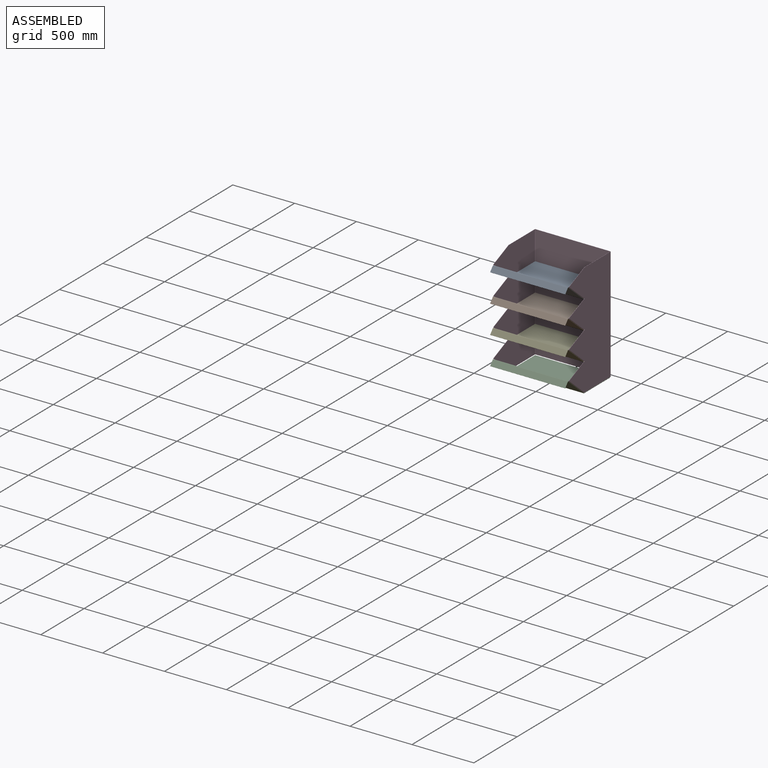
[diagram: assembled view]
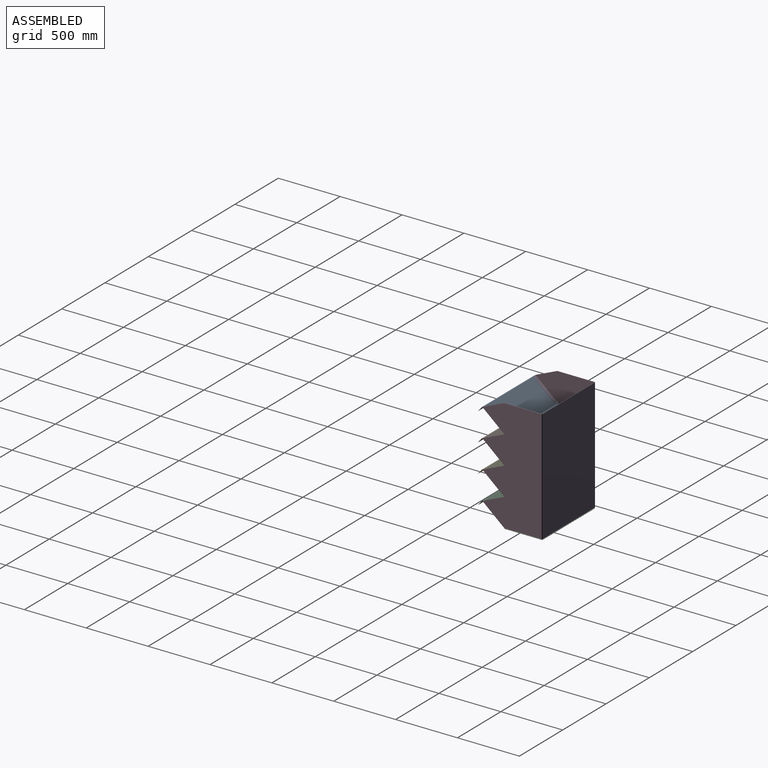
[diagram: assembled view, second angle]
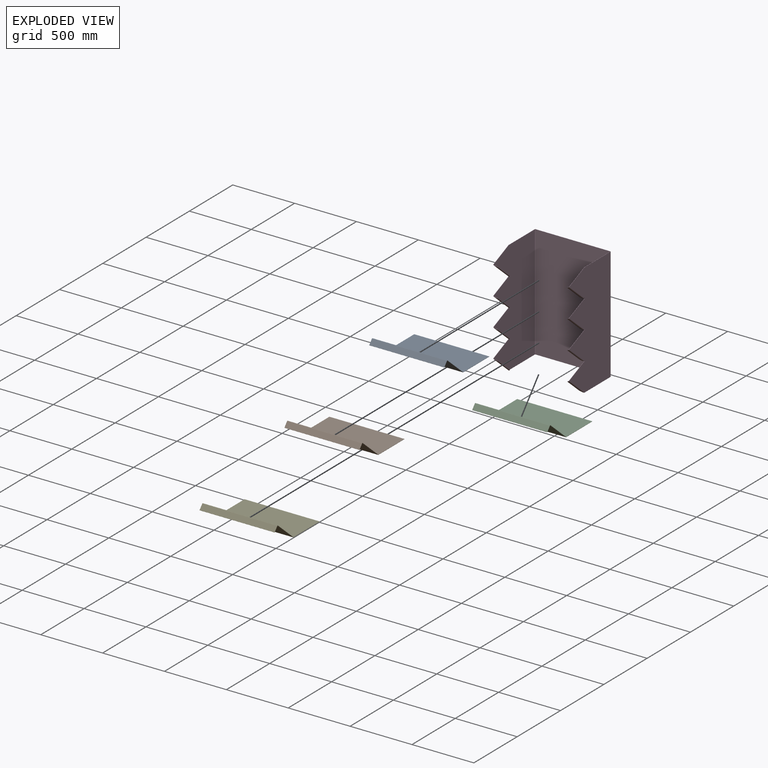
[diagram: exploded view]
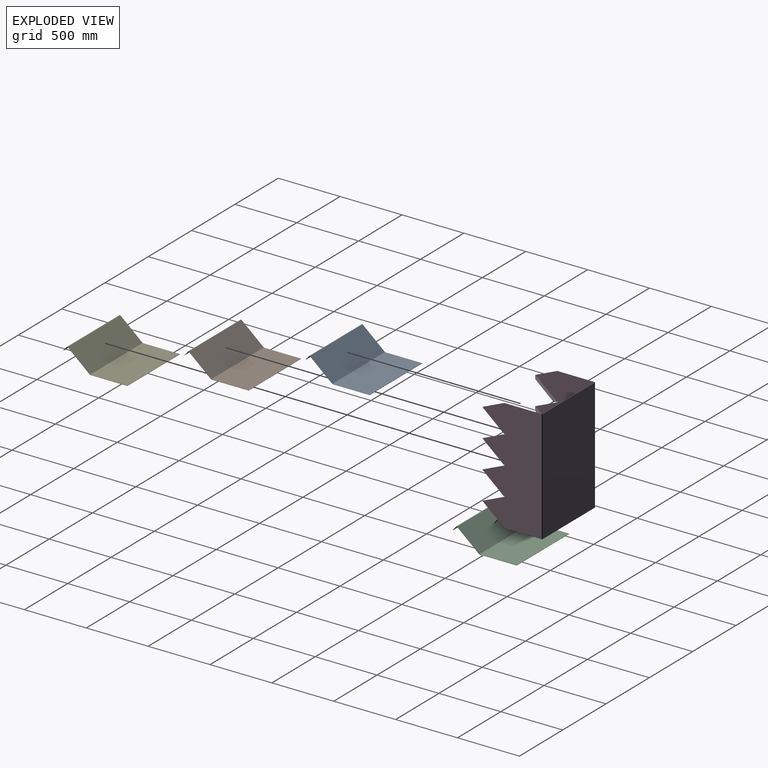
[diagram: exploded view, second angle]
ASSEMBLY  parts=5 mates=12
PART A: 22 faces, bbox 606.4x519.6x157.5 mm
  f0: plane 299.86x1.9mm, normal (-1,0,0), area 568.9mm2, adj f2,f3,f4,f19
  f1: plane 299.86x1.9mm, normal (1,0,0), area 568.9mm2, adj f2,f3,f4,f18
  f2: plane 606.43x1.9mm, normal (0,1,0), area 1150.6mm2, adj f0,f1,f3,f4
  f3: plane 606.43x299.86mm, normal (0,0,1), area 181840mm2, adj f0,f1,f2,f21
  f4: plane 606.43x299.86mm, normal (0,0,-1), area 181840mm2, adj f0,f1,f2,f20
  f5: plane 180.2x154.84mm, normal (-1,0,0), area 447.2mm2, adj f7,f8,f15,f19
  f6: plane 180.2x154.84mm, normal (1,0,0), area 447.2mm2, adj f7,f8,f14,f18
  f7: plane 606.43x178.96mm, normal (0,0.65,0.76), area 142937.4mm2, adj f5,f6,f16,f21
  f8: plane 606.43x178.96mm, normal (0,-0.65,-0.76), area 142937.4mm2, adj f5,f6,f17,f20
  f9: plane 37.09x32.18mm, normal (-1,0,0), area 89.6mm2, adj f10,f12,f13,f15
  f10: plane 606.43x1.44mm, normal (0,-0.65,-0.76), area 1150.6mm2, adj f9,f11,f12,f13
  f11: plane 37.09x32.18mm, normal (1,0,0), area 89.6mm2, adj f10,f12,f13,f14
  f12: plane 606.43x35.86mm, normal (0,-0.76,0.65), area 28640.3mm2, adj f9,f10,f11,f16
  f13: plane 606.43x35.86mm, normal (0,0.76,-0.65), area 28640.3mm2, adj f9,f10,f11,f17
  f14: plane 7.71x3.14mm, normal (1,0,0), area 13.5mm2, adj f6,f11,f16,f17
  f15: plane 7.71x3.14mm, normal (-1,0,0), area 13.5mm2, adj f5,f9,f16,f17
  f16: cylinder r=5.47mm len=606.43mm, axis (1,0,0), area 5209.8mm2, adj f7,f12,f14,f15
  f17: cylinder r=3.57mm len=606.43mm, axis (1,0,0), area 3402.5mm2, adj f8,f13,f14,f15
  f18: plane 3.56x2.76mm, normal (1,0,0), area 6.1mm2, adj f1,f6,f20,f21
  f19: plane 3.56x2.76mm, normal (-1,0,0), area 6.1mm2, adj f0,f5,f20,f21
  f20: cylinder r=5.47mm len=606.43mm, axis (1,0,0), area 2350.3mm2, adj f4,f8,f18,f19
  f21: cylinder r=3.57mm len=606.43mm, axis (1,0,0), area 1534.9mm2, adj f3,f7,f18,f19
PART B: same geometry as A
PART C: same geometry as A
PART D: 142 faces, bbox 613.4x484.7x918.6 mm
  f0: plane 602.46x1.9mm, normal (0,0,-1), area 1143.1mm2, adj f2,f3,f34,f67
  f1: plane 602.46x1.9mm, normal (0,0,1), area 1143.1mm2, adj f2,f3,f33,f66
  f2: plane 914.4x602.46mm, normal (0,1,0), area 550886mm2, adj f0,f1,f35,f68
  f3: plane 914.4x602.46mm, normal (0,-1,0), area 550886mm2, adj f0,f1,f36,f69
  f4: plane 6.9x2.96mm, normal (0,-0.39,0.92), area 14.2mm2, adj f6,f13,f14,f29
  f5: plane 168.74x72.32mm, normal (0,-0.39,0.92), area 348.3mm2, adj f13,f14,f28,f112
  f6: plane 2.52x2.16mm, normal (0,-0.65,-0.76), area 6.3mm2, adj f4,f13,f14,f30
  f7: plane 6.9x2.96mm, normal (0,-0.39,0.92), area 14.2mm2, adj f9,f13,f14,f24
  f8: plane 168.74x72.32mm, normal (0,-0.39,0.92), area 348.3mm2, adj f13,f14,f23,f139
  f9: plane 2.52x2.16mm, normal (0,-0.65,-0.76), area 6.3mm2, adj f7,f13,f14,f25
  f10: plane 6.9x2.96mm, normal (0,-0.39,0.92), area 14.2mm2, adj f12,f13,f14,f19
  f11: plane 168.74x72.32mm, normal (0,-0.39,0.92), area 348.3mm2, adj f13,f14,f18,f130
  f12: plane 2.52x2.16mm, normal (0,-0.65,-0.76), area 6.3mm2, adj f10,f13,f14,f20
  f13: plane 914.4x475.37mm, normal (-1,0,0), area 353364.2mm2, adj f4,f5,f6,f7,f8,f9,f10,f11
  f14: plane 914.4x475.37mm, normal (1,0,0), area 353364.2mm2, adj f4,f5,f6,f7,f8,f9,f10,f11
  f15: plane 174.14x74.63mm, normal (0,-0.39,0.92), area 359.5mm2, adj f13,f14,f16,f121
  f16: plane 301.23x1.9mm, normal (0,0,1), area 571.5mm2, adj f13,f14,f15,f33
  f17: plane 295.74x1.9mm, normal (0,0,-1), area 561.1mm2, adj f13,f14,f34,f111
  f18: plane 1.9x0.79mm, normal (0,0.65,0.76), area 2mm2, adj f11,f13,f14,f19
  f19: plane 1.9x1.61mm, normal (0,-0.76,0.65), area 4mm2, adj f10,f13,f14,f18
  f20: plane 1.9x1.36mm, normal (0,-0.76,0.65), area 3.4mm2, adj f12,f13,f14,f22
  f21: plane 1.9x1.36mm, normal (0,0.76,-0.65), area 3.4mm2, adj f13,f14,f22,f120
  f22: cylinder r=1.01mm len=1.9mm, axis (1,0,0), area 6mm2, adj f13,f14,f20,f21
  f23: plane 1.9x0.79mm, normal (0,0.65,0.76), area 2mm2, adj f8,f13,f14,f24
  f24: plane 1.9x1.61mm, normal (0,-0.76,0.65), area 4mm2, adj f7,f13,f14,f23
  f25: plane 1.9x1.36mm, normal (0,-0.76,0.65), area 3.4mm2, adj f9,f13,f14,f27
  f26: plane 1.9x1.36mm, normal (0,0.76,-0.65), area 3.4mm2, adj f13,f14,f27,f129
  f27: cylinder r=1.01mm len=1.9mm, axis (1,0,0), area 6mm2, adj f13,f14,f25,f26
  f28: plane 1.9x0.79mm, normal (0,0.65,0.76), area 2mm2, adj f5,f13,f14,f29
  f29: plane 1.9x1.61mm, normal (0,-0.76,0.65), area 4mm2, adj f4,f13,f14,f28
  f30: plane 1.9x1.36mm, normal (0,-0.76,0.65), area 3.4mm2, adj f6,f13,f14,f32
  f31: plane 1.9x1.36mm, normal (0,0.76,-0.65), area 3.4mm2, adj f13,f14,f32,f138
  f32: cylinder r=1.01mm len=1.9mm, axis (1,0,0), area 6mm2, adj f13,f14,f30,f31
  f33: plane 5.47x5.47mm, normal (0,0,1), area 13.5mm2, adj f1,f16,f35,f36
  f34: plane 5.47x5.47mm, normal (0,0,-1), area 13.5mm2, adj f0,f17,f35,f36
  f35: cylinder r=5.47mm len=914.4mm, axis (0,0,1), area 7855.7mm2, adj f2,f13,f33,f34
  f36: cylinder r=3.57mm len=914.4mm, axis (0,0,1), area 5130.4mm2, adj f3,f14,f33,f34
  f37: plane 2.52x2.16mm, normal (0,-0.65,-0.76), area 6.3mm2, adj f38,f43,f50,f64
  f38: plane 6.9x2.96mm, normal (0,-0.39,0.92), area 14.2mm2, adj f37,f43,f50,f62
  f39: plane 2.52x2.16mm, normal (0,-0.65,-0.76), area 6.3mm2, adj f40,f43,f50,f59
  f40: plane 6.9x2.96mm, normal (0,-0.39,0.92), area 14.2mm2, adj f39,f43,f50,f57
  f41: plane 2.52x2.16mm, normal (0,-0.65,-0.76), area 6.3mm2, adj f42,f43,f50,f54
  f42: plane 6.9x2.96mm, normal (0,-0.39,0.92), area 14.2mm2, adj f41,f43,f50,f52
  f43: plane 914.4x475.37mm, normal (1,0,0), area 353364.2mm2, adj f37,f38,f39,f40,f41,f42,f44,f45
  f44: plane 301.23x1.9mm, normal (0,0,1), area 571.5mm2, adj f43,f45,f50,f66
  f45: plane 174.14x74.63mm, normal (0,-0.39,0.92), area 359.5mm2, adj f43,f44,f50,f103
  f46: plane 168.74x72.32mm, normal (0,-0.39,0.92), area 348.3mm2, adj f43,f50,f61,f94
  f47: plane 168.74x72.32mm, normal (0,-0.39,0.92), area 348.3mm2, adj f43,f50,f56,f85
  f48: plane 168.74x72.32mm, normal (0,-0.39,0.92), area 348.3mm2, adj f43,f50,f51,f76
  f49: plane 295.74x1.9mm, normal (0,0,-1), area 561.1mm2, adj f43,f50,f67,f75
  f50: plane 914.4x475.37mm, normal (-1,0,0), area 353364.2mm2, adj f37,f38,f39,f40,f41,f42,f44,f45
  f51: plane 1.9x0.79mm, normal (0,0.65,0.76), area 2mm2, adj f43,f48,f50,f52
  f52: plane 1.9x1.61mm, normal (0,-0.76,0.65), area 4mm2, adj f42,f43,f50,f51
  f53: cylinder r=1.01mm len=1.9mm, axis (-1,0,0), area 6mm2, adj f43,f50,f54,f55
  f54: plane 1.9x1.36mm, normal (0,-0.76,0.65), area 3.4mm2, adj f41,f43,f50,f53
  f55: plane 1.9x1.36mm, normal (0,0.76,-0.65), area 3.4mm2, adj f43,f50,f53,f84
  f56: plane 1.9x0.79mm, normal (0,0.65,0.76), area 2mm2, adj f43,f47,f50,f57
  f57: plane 1.9x1.61mm, normal (0,-0.76,0.65), area 4mm2, adj f40,f43,f50,f56
  f58: cylinder r=1.01mm len=1.9mm, axis (-1,0,0), area 6mm2, adj f43,f50,f59,f60
  f59: plane 1.9x1.36mm, normal (0,-0.76,0.65), area 3.4mm2, adj f39,f43,f50,f58
  f60: plane 1.9x1.36mm, normal (0,0.76,-0.65), area 3.4mm2, adj f43,f50,f58,f93
  f61: plane 1.9x0.79mm, normal (0,0.65,0.76), area 2mm2, adj f43,f46,f50,f62
  f62: plane 1.9x1.61mm, normal (0,-0.76,0.65), area 4mm2, adj f38,f43,f50,f61
  f63: cylinder r=1.01mm len=1.9mm, axis (-1,0,0), area 6mm2, adj f43,f50,f64,f65
  f64: plane 1.9x1.36mm, normal (0,-0.76,0.65), area 3.4mm2, adj f37,f43,f50,f63
  f65: plane 1.9x1.36mm, normal (0,0.76,-0.65), area 3.4mm2, adj f43,f50,f63,f102
  f66: plane 5.47x5.47mm, normal (0,0,1), area 13.5mm2, adj f1,f44,f68,f69
  f67: plane 5.47x5.47mm, normal (0,0,-1), area 13.5mm2, adj f0,f49,f68,f69
  f68: cylinder r=5.47mm len=914.4mm, axis (0,0,1), area 7855.7mm2, adj f2,f43,f66,f67
  f69: cylinder r=3.57mm len=914.4mm, axis (0,0,1), area 5130.4mm2, adj f3,f50,f66,f67
  f70: plane 143.35x123.25mm, normal (-1,0,0), area 355.1mm2, adj f71,f72,f73,f74
  f71: plane 19.93x16.37mm, normal (-0.71,0.54,-0.46), area 53.5mm2, adj f70,f73,f74,f75
  f72: plane 19.93x16.37mm, normal (-0.71,-0.54,0.46), area 53.5mm2, adj f70,f73,f74,f76
  f73: plane 172.38x147.75mm, normal (0,-0.65,-0.76), area 4127.7mm2, adj f70,f71,f72,f77
  f74: plane 172.38x147.75mm, normal (0,0.65,0.76), area 4127.7mm2, adj f70,f71,f72,f78
  f75: bspline ~9.44x5.47mm, area 20mm2, adj f49,f71,f77,f78
  f76: bspline ~5.47x5.33mm, area 14.7mm2, adj f48,f72,f77,f78
  f77: cylinder r=5.47mm len=183.5mm, axis (0,0.76,-0.65), area 1997.7mm2, adj f43,f73,f75,f76
  f78: cylinder r=3.57mm len=182.26mm, axis (0,0.76,-0.65), area 1304.7mm2, adj f50,f74,f75,f76
  f79: plane 143.35x123.25mm, normal (-1,0,0), area 355.1mm2, adj f80,f81,f82,f83
  f80: plane 19.93x16.37mm, normal (-0.71,0.54,-0.46), area 53.5mm2, adj f79,f82,f83,f84
  f81: plane 19.93x16.37mm, normal (-0.71,-0.54,0.46), area 53.5mm2, adj f79,f82,f83,f85
  f82: plane 172.38x147.75mm, normal (0,-0.65,-0.76), area 4127.7mm2, adj f79,f80,f81,f86
  f83: plane 172.38x147.75mm, normal (0,0.65,0.76), area 4127.7mm2, adj f79,f80,f81,f87
  f84: plane 5.47x4.15mm, normal (0,0.76,-0.65), area 13.5mm2, adj f55,f80,f86,f87
  f85: bspline ~5.47x5.33mm, area 14.7mm2, adj f47,f81,f86,f87
  f86: cylinder r=5.47mm len=177.62mm, axis (0,0.76,-0.65), area 1964.5mm2, adj f43,f82,f84,f85
  f87: cylinder r=3.57mm len=176.39mm, axis (0,0.76,-0.65), area 1283mm2, adj f50,f83,f84,f85
  f88: plane 143.35x123.25mm, normal (-1,0,0), area 355.1mm2, adj f89,f90,f91,f92
  f89: plane 19.93x16.37mm, normal (-0.71,0.54,-0.46), area 53.5mm2, adj f88,f91,f92,f93
  f90: plane 19.93x16.37mm, normal (-0.71,-0.54,0.46), area 53.5mm2, adj f88,f91,f92,f94
  f91: plane 172.38x147.75mm, normal (0,-0.65,-0.76), area 4127.7mm2, adj f88,f89,f90,f95
  f92: plane 172.38x147.75mm, normal (0,0.65,0.76), area 4127.7mm2, adj f88,f89,f90,f96
  f93: plane 5.47x4.15mm, normal (0,0.76,-0.65), area 13.5mm2, adj f60,f89,f95,f96
  f94: bspline ~5.47x5.33mm, area 14.7mm2, adj f46,f90,f95,f96
  f95: cylinder r=5.47mm len=177.62mm, axis (0,0.76,-0.65), area 1964.5mm2, adj f43,f91,f93,f94
  f96: cylinder r=3.57mm len=176.39mm, axis (0,0.76,-0.65), area 1283mm2, adj f50,f92,f93,f94
  f97: plane 143.35x123.25mm, normal (-1,0,0), area 355.1mm2, adj f98,f99,f100,f101
  f98: plane 19.93x16.37mm, normal (-0.71,0.54,-0.46), area 53.5mm2, adj f97,f100,f101,f102
  f99: plane 19.93x16.37mm, normal (-0.71,-0.54,0.46), area 53.5mm2, adj f97,f100,f101,f103
  f100: plane 172.38x147.75mm, normal (0,-0.65,-0.76), area 4127.7mm2, adj f97,f98,f99,f104
  f101: plane 172.38x147.75mm, normal (0,0.65,0.76), area 4127.7mm2, adj f97,f98,f99,f105
  f102: plane 5.47x4.15mm, normal (0,0.76,-0.65), area 13.5mm2, adj f65,f98,f104,f105
  f103: bspline ~5.47x5.33mm, area 14.7mm2, adj f45,f99,f104,f105
  f104: cylinder r=5.47mm len=177.62mm, axis (0,0.76,-0.65), area 1964.5mm2, adj f43,f100,f102,f103
  f105: cylinder r=3.57mm len=176.39mm, axis (0,0.76,-0.65), area 1283mm2, adj f50,f101,f102,f103
  f106: plane 143.35x123.25mm, normal (1,0,0), area 355.1mm2, adj f107,f108,f109,f110
  f107: plane 19.93x16.37mm, normal (0.71,-0.54,0.46), area 53.5mm2, adj f106,f109,f110,f112
  f108: plane 19.93x16.37mm, normal (0.71,0.54,-0.46), area 53.5mm2, adj f106,f109,f110,f111
  f109: plane 172.38x147.75mm, normal (0,-0.65,-0.76), area 4127.7mm2, adj f106,f107,f108,f113
  f110: plane 172.38x147.75mm, normal (0,0.65,0.76), area 4127.7mm2, adj f106,f107,f108,f114
  f111: bspline ~9.44x5.47mm, area 19.9mm2, adj f17,f108,f113,f114
  f112: bspline ~5.47x5.33mm, area 14.7mm2, adj f5,f107,f113,f114
  f113: cylinder r=5.47mm len=183.5mm, axis (0,0.76,-0.65), area 1997.7mm2, adj f13,f109,f111,f112
  f114: cylinder r=3.57mm len=182.26mm, axis (0,0.76,-0.65), area 1304.7mm2, adj f14,f110,f111,f112
  f115: plane 143.35x123.25mm, normal (1,0,0), area 355.1mm2, adj f116,f117,f118,f119
  f116: plane 19.93x16.37mm, normal (0.71,-0.54,0.46), area 53.5mm2, adj f115,f118,f119,f121
  f117: plane 19.93x16.37mm, normal (0.71,0.54,-0.46), area 53.5mm2, adj f115,f118,f119,f120
  f118: plane 172.38x147.75mm, normal (0,-0.65,-0.76), area 4127.7mm2, adj f115,f116,f117,f122
  f119: plane 172.38x147.75mm, normal (0,0.65,0.76), area 4127.7mm2, adj f115,f116,f117,f123
  f120: plane 5.47x4.15mm, normal (0,0.76,-0.65), area 13.5mm2, adj f21,f117,f122,f123
  f121: bspline ~5.47x5.33mm, area 14.7mm2, adj f15,f116,f122,f123
  f122: cylinder r=5.47mm len=177.62mm, axis (0,0.76,-0.65), area 1964.5mm2, adj f13,f118,f120,f121
  f123: cylinder r=3.57mm len=176.39mm, axis (0,0.76,-0.65), area 1283mm2, adj f14,f119,f120,f121
  f124: plane 143.35x123.25mm, normal (1,0,0), area 355.1mm2, adj f125,f126,f127,f128
  f125: plane 19.93x16.37mm, normal (0.71,-0.54,0.46), area 53.5mm2, adj f124,f127,f128,f130
  f126: plane 19.93x16.37mm, normal (0.71,0.54,-0.46), area 53.5mm2, adj f124,f127,f128,f129
  f127: plane 172.38x147.75mm, normal (0,-0.65,-0.76), area 4127.7mm2, adj f124,f125,f126,f131
  f128: plane 172.38x147.75mm, normal (0,0.65,0.76), area 4127.7mm2, adj f124,f125,f126,f132
  f129: plane 5.47x4.15mm, normal (0,0.76,-0.65), area 13.5mm2, adj f26,f126,f131,f132
  f130: bspline ~5.47x5.33mm, area 14.7mm2, adj f11,f125,f131,f132
  f131: cylinder r=5.47mm len=177.62mm, axis (0,0.76,-0.65), area 1964.5mm2, adj f13,f127,f129,f130
  f132: cylinder r=3.57mm len=176.39mm, axis (0,0.76,-0.65), area 1283mm2, adj f14,f128,f129,f130
  f133: plane 143.35x123.25mm, normal (1,0,0), area 355.1mm2, adj f134,f135,f136,f137
  f134: plane 19.93x16.37mm, normal (0.71,-0.54,0.46), area 53.5mm2, adj f133,f136,f137,f139
  f135: plane 19.93x16.37mm, normal (0.71,0.54,-0.46), area 53.5mm2, adj f133,f136,f137,f138
  f136: plane 172.38x147.75mm, normal (0,-0.65,-0.76), area 4127.7mm2, adj f133,f134,f135,f140
  f137: plane 172.38x147.75mm, normal (0,0.65,0.76), area 4127.7mm2, adj f133,f134,f135,f141
  f138: plane 5.47x4.15mm, normal (0,0.76,-0.65), area 13.5mm2, adj f31,f135,f140,f141
  f139: bspline ~5.47x5.33mm, area 14.7mm2, adj f8,f134,f140,f141
  f140: cylinder r=5.47mm len=177.62mm, axis (0,0.76,-0.65), area 1964.5mm2, adj f13,f136,f138,f139
  f141: cylinder r=3.57mm len=176.39mm, axis (0,0.76,-0.65), area 1283mm2, adj f14,f137,f138,f139
PART E: same geometry as A
PLACE A t=(294.61,4.32,678.3)mm
PLACE B t=(294.61,4.32,449.7)mm
PLACE C t=(294.61,4.32,-7.5)mm
PLACE D t=(296.2,4.32,0)mm fixed
PLACE E t=(294.61,4.32,221.1)mm
MATE planar A.f2 <-> D.f3  axis (0,1,0) through (294.61,4.32,679.25)mm
MATE planar D.f91 <-> B.f7  axis (0,-0.65,-0.76) through (587.78,-390.62,531.96)mm
MATE planar A.f0 <-> D.f14  axis (-1,0,0) through (-8.6,-145.61,679.25)mm
MATE planar E.f5 <-> D.f14  axis (-1,0,0) through (-8.6,-387.96,299.83)mm
MATE planar E.f2 <-> D.f3  axis (0,1,0) through (294.61,4.32,222.05)mm
MATE planar E.f7 <-> D.f82  axis (0,0.65,0.76) through (294.61,-297.86,223.86)mm
MATE planar C.f0 <-> D.f14  axis (-1,0,0) through (-8.6,-145.61,-6.55)mm
MATE planar B.f0 <-> D.f14  axis (-1,0,0) through (-8.6,-145.61,450.65)mm
MATE planar C.f7 <-> D.f73  axis (0,0.65,0.76) through (294.61,-387.34,71.95)mm
MATE planar C.f2 <-> D.f3  axis (0,1,0) through (294.61,4.32,-6.55)mm
MATE planar B.f2 <-> D.f3  axis (0,1,0) through (294.61,4.32,450.65)mm
MATE planar D.f118 <-> A.f7  axis (0,-0.65,-0.76) through (4.62,-390.62,760.56)mm
